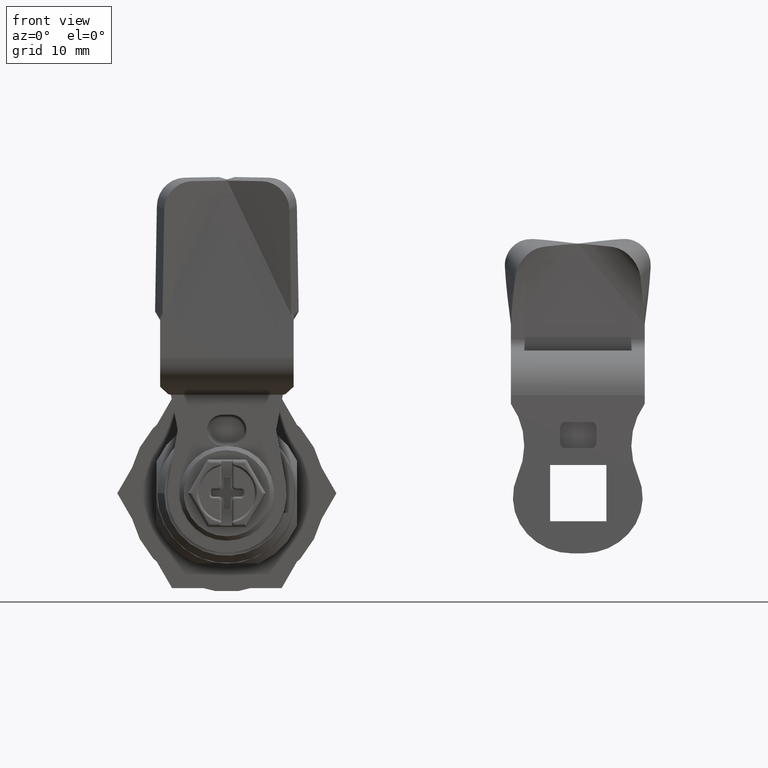
[diagram: clean part render]
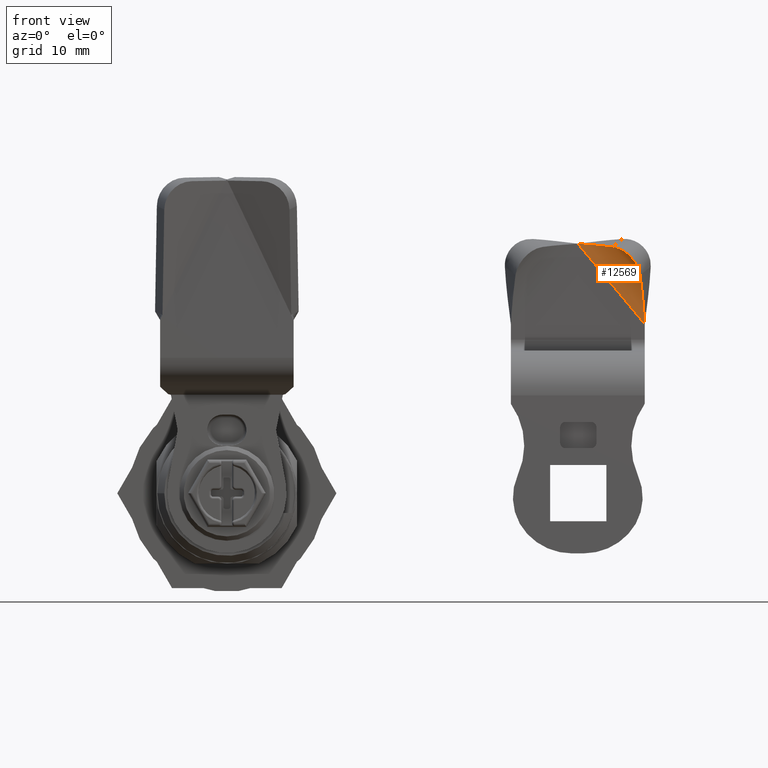
[diagram: same view with one face highlighted and labeled with its STEP entity id]
A machine part, front view. The second image highlights one B-rep face of the part: STEP entity #12569.
In plain terms, the highlighted cylindrical surface (partial cylindrical patch) has radius 7.62 mm, axis along (-0.6402, 0, 0.7682).
Its self-contained STEP definition (entity closure, byte-faithful):
#61 = CARTESIAN_POINT ( 'NONE',  ( 2.180831395695222774, -0.4995829328468665009, 1.376093961392495624 ) ) ;
#123 = CARTESIAN_POINT ( 'NONE',  ( 2.171704781698835962, -0.4963993391834077840, 1.378433313906254565 ) ) ;
#292 = DIRECTION ( 'NONE',  ( 0.000000000000000000, -1.000000000000000000, 0.000000000000000000 ) ) ;
#485 = B_SPLINE_CURVE_WITH_KNOTS ( 'NONE', 3,
 ( #9260, #123, #61, #13410, #7359, #10287, #12587, #11242, #1953, #4252, #5339, #10215, #3244, #997, #4118, #8227, #6219, #11510 ),
 .UNSPECIFIED., .F., .F.,
 ( 4, 2, 2, 2, 2, 2, 2, 2, 4 ),
 ( 5.834973636157267565E-12, 0.0007561855406888959297, 0.001512371075542818079, 0.002268556610396740229, 0.003024742145250662595, 0.003780927680104584961, 0.004537113214958507328, 0.005293298749812430128, 0.006049484284666352060 ),
 .UNSPECIFIED. ) ;
#663 = CARTESIAN_POINT ( 'NONE',  ( 2.032551798060885151, -0.4615990737737505900, 1.393124079580327912 ) ) ;
#685 = CARTESIAN_POINT ( 'NONE',  ( 2.314678634384084610, -0.5014833380331229495, 1.220327426896654854 ) ) ;
#997 = CARTESIAN_POINT ( 'NONE',  ( 2.300897755571591929, -0.5138721226134981279, 1.266519234594870813 ) ) ;
#1058 = EDGE_CURVE ( 'NONE', #9868, #6174, #1777, .T. ) ;
#1651 = B_SPLINE_CURVE_WITH_KNOTS ( 'NONE', 3,
 ( #5715, #9831, #6653, #3416, #11685, #4681 ),
 .UNSPECIFIED., .F., .F.,
 ( 4, 2, 4 ),
 ( 1.430489624538199204E-17, 0.003530780670626982188, 0.007061561341253949631 ),
 .UNSPECIFIED. ) ;
#1755 = CARTESIAN_POINT ( 'NONE',  ( 1.965507139419503169, -0.4586614173228345526, 1.398051181103201701 ) ) ;
#1777 = LINE ( 'NONE', #13229, #6004 ) ;
#1953 = CARTESIAN_POINT ( 'NONE',  ( 2.255052612479949481, -0.5182080819960149798, 1.330821210262375986 ) ) ;
#2403 = CYLINDRICAL_SURFACE ( 'NONE', #3873, 0.2999999999999999334 ) ;
#2449 = ORIENTED_EDGE ( 'NONE', *, *, #1058, .T. ) ;
#2675 = EDGE_LOOP ( 'NONE', ( #2449, #13396, #2786, #9218 ) ) ;
#2786 = ORIENTED_EDGE ( 'NONE', *, *, #4528, .F. ) ;
#3244 = CARTESIAN_POINT ( 'NONE',  ( 2.291808653662119610, -0.5168624501734548904, 1.283900769617875248 ) ) ;
#3416 = CARTESIAN_POINT ( 'NONE',  ( 2.333899731301602110, -0.4623307820498466780, 1.040391409915558452 ) ) ;
#3865 = EDGE_CURVE ( 'NONE', #7276, #9868, #5027, .T. ) ;
#3873 = AXIS2_PLACEMENT_3D ( 'NONE', #9574, #10852, #292 ) ;
#4046 = CARTESIAN_POINT ( 'NONE',  ( 1.999057592157681640, -0.4586614173215048385, 1.395585893494033947 ) ) ;
#4118 = CARTESIAN_POINT ( 'NONE',  ( 2.304754824066694407, -0.5119313499212352347, 1.257611260160695021 ) ) ;
#4252 = CARTESIAN_POINT ( 'NONE',  ( 2.268640173370713331, -0.5190745284706054230, 1.316321134233917833 ) ) ;
#4528 = EDGE_CURVE ( 'NONE', #7276, #6781, #485, .T. ) ;
#4681 = CARTESIAN_POINT ( 'NONE',  ( 2.340507139335867848, -0.4586614173228346636, 0.9480511824309827418 ) ) ;
#4952 = DIRECTION ( 'NONE',  ( 0.6401843996644799306, -0.000000000000000000, -0.7682212795973758501 ) ) ;
#5027 = B_SPLINE_CURVE_WITH_KNOTS ( 'NONE', 3,
 ( #7099, #13134, #6887, #663, #4046, #1755 ),
 .UNSPECIFIED., .F., .F.,
 ( 4, 2, 4 ),
 ( 0.000000000000000000, 0.002557814359880750468, 0.005115628719761500937 ),
 .UNSPECIFIED. ) ;
#5339 = CARTESIAN_POINT ( 'NONE',  ( 2.274931850589556603, -0.5190132360674816203, 1.308645414237875615 ) ) ;
#5715 = CARTESIAN_POINT ( 'NONE',  ( 2.314678634384084610, -0.5014833380331229495, 1.220327426896654854 ) ) ;
#6004 = VECTOR ( 'NONE', #4952, 39.37007874015748143 ) ;
#6174 = VERTEX_POINT ( 'NONE', #8561 ) ;
#6219 = CARTESIAN_POINT ( 'NONE',  ( 2.313316300443743589, -0.5045078173099926122, 1.229828145220820179 ) ) ;
#6653 = CARTESIAN_POINT ( 'NONE',  ( 2.325771836443680129, -0.4767810663587073172, 1.131601679743649669 ) ) ;
#6781 = VERTEX_POINT ( 'NONE', #685 ) ;
#6887 = CARTESIAN_POINT ( 'NONE',  ( 2.098482530626060161, -0.4731668433737130641, 1.387299823225692341 ) ) ;
#7099 = CARTESIAN_POINT ( 'NONE',  ( 2.162290149293715213, -0.4930299454824282890, 1.379703689532370658 ) ) ;
#7276 = VERTEX_POINT ( 'NONE', #13099 ) ;
#7359 = CARTESIAN_POINT ( 'NONE',  ( 2.207481264660290154, -0.5081085143198332821, 1.365488910171421821 ) ) ;
#7587 = FACE_OUTER_BOUND ( 'NONE', #2675, .T. ) ;
#8227 = CARTESIAN_POINT ( 'NONE',  ( 2.310966297990012297, -0.5072573070248723726, 1.239283424681365764 ) ) ;
#8561 = CARTESIAN_POINT ( 'NONE',  ( 2.340507139335867848, -0.4586614173228346636, 0.9480511824309827418 ) ) ;
#9218 = ORIENTED_EDGE ( 'NONE', *, *, #3865, .T. ) ;
#9260 = CARTESIAN_POINT ( 'NONE',  ( 2.162290149293715213, -0.4930299454824282890, 1.379703689532370658 ) ) ;
#9574 = CARTESIAN_POINT ( 'NONE',  ( 2.340507139430933137, -0.7586614173228346525, 0.9480511811023623059 ) ) ;
#9831 = CARTESIAN_POINT ( 'NONE',  ( 2.320957475247663382, -0.4875438599710224530, 1.176539705927050594 ) ) ;
#9868 = VERTEX_POINT ( 'NONE', #13126 ) ;
#10215 = CARTESIAN_POINT ( 'NONE',  ( 2.286517493662937994, -0.5179140830878552482, 1.292448148789103746 ) ) ;
#10287 = CARTESIAN_POINT ( 'NONE',  ( 2.224316790411862144, -0.5126290238673030242, 1.355698990041877439 ) ) ;
#10852 = DIRECTION ( 'NONE',  ( -0.6401843996644799306, 0.000000000000000000, 0.7682212795973758501 ) ) ;
#11242 = CARTESIAN_POINT ( 'NONE',  ( 2.247689718573727902, -0.5172633208946733063, 1.337690178543210262 ) ) ;
#11510 = CARTESIAN_POINT ( 'NONE',  ( 2.314678634384084610, -0.5014833380331229495, 1.220327426896654854 ) ) ;
#11685 = CARTESIAN_POINT ( 'NONE',  ( 2.337197015948521361, -0.4586614174631696295, 0.9943128383809476389 ) ) ;
#12569 = ADVANCED_FACE ( 'NONE', ( #7587 ), #2403, .F. ) ;
#12587 = CARTESIAN_POINT ( 'NONE',  ( 2.232333649546671239, -0.5144709744068935997, 1.350107588882651477 ) ) ;
#12613 = EDGE_CURVE ( 'NONE', #6781, #6174, #1651, .T. ) ;
#13099 = CARTESIAN_POINT ( 'NONE',  ( 2.162290149293715213, -0.4930299454824282890, 1.379703689532370658 ) ) ;
#13126 = CARTESIAN_POINT ( 'NONE',  ( 1.965507139419503169, -0.4586614173228345526, 1.398051181103201701 ) ) ;
#13134 = CARTESIAN_POINT ( 'NONE',  ( 2.130869150798999634, -0.4817847146703371219, 1.383943522689763617 ) ) ;
#13229 = CARTESIAN_POINT ( 'NONE',  ( 2.340507139430933137, -0.4586614173228346081, 0.9480511811023623059 ) ) ;
#13396 = ORIENTED_EDGE ( 'NONE', *, *, #12613, .F. ) ;
#13410 = CARTESIAN_POINT ( 'NONE',  ( 2.198680386094514549, -0.5054268178751997187, 1.369649630588548161 ) ) ;